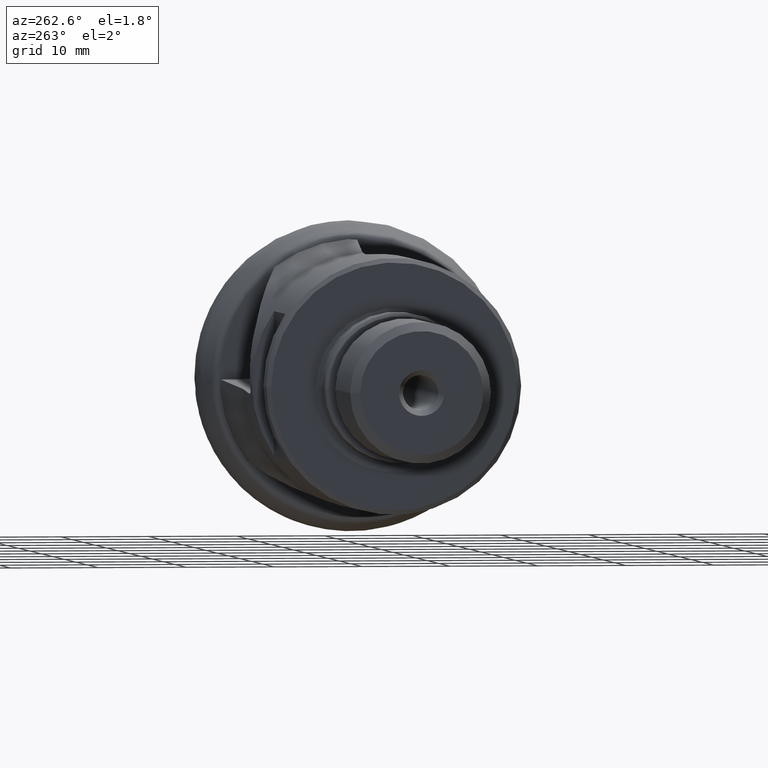
[diagram: clean part render]
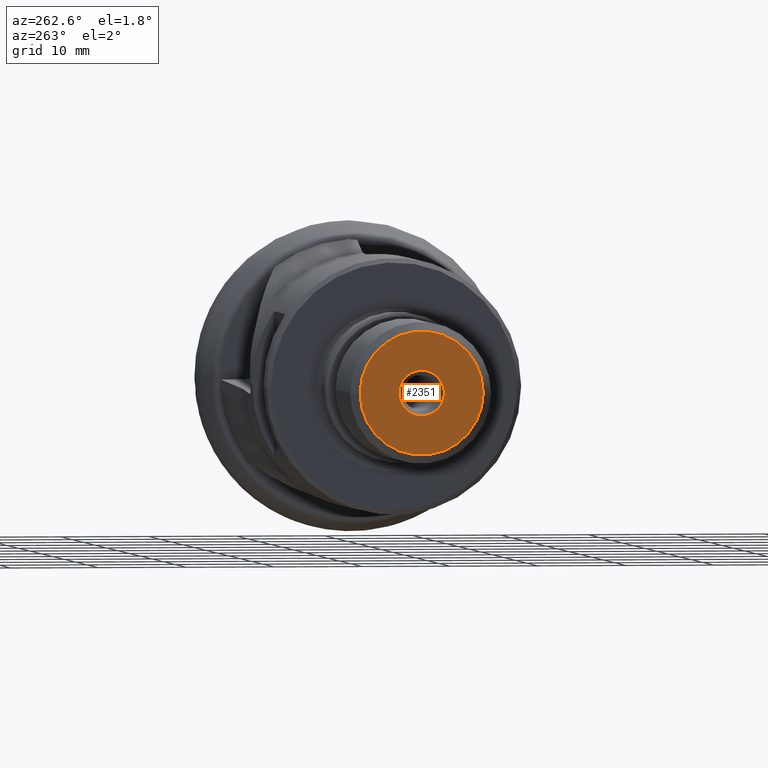
[diagram: same view with one face highlighted and labeled with its STEP entity id]
A machine part, auxiliary view. The second image highlights one B-rep face of the part: STEP entity #2351.
In plain terms, the highlighted planar face has unit normal (-1, -0, 0).
Its self-contained STEP definition (entity closure, byte-faithful):
#129 = CARTESIAN_POINT ( 'NONE',  ( -65.04999999999999700, -7.966327428453520100E-015, 0.0000000000000000000 ) ) ;
#557 = EDGE_CURVE ( 'NONE', #2455, #2455, #1476, .T. ) ;
#772 = CIRCLE ( 'NONE', #4047, 6.999999999999999100 ) ;
#780 = EDGE_LOOP ( 'NONE', ( #4846 ) ) ;
#1109 = VERTEX_POINT ( 'NONE', #2147 ) ;
#1167 = DIRECTION ( 'NONE',  ( 1.000000000000000000, 1.224646799147351500E-016, -0.0000000000000000000 ) ) ;
#1181 = DIRECTION ( 'NONE',  ( 0.0000000000000000000, 1.000000000000000000, 0.0000000000000000000 ) ) ;
#1410 = EDGE_CURVE ( 'NONE', #1109, #1109, #772, .T. ) ;
#1476 = CIRCLE ( 'NONE', #1555, 2.577350269189610600 ) ;
#1555 = AXIS2_PLACEMENT_3D ( 'NONE', #1866, #2871, #2906 ) ;
#1612 = DIRECTION ( 'NONE',  ( -1.000000000000000000, -1.224646799147351500E-016, 0.0000000000000000000 ) ) ;
#1818 = DIRECTION ( 'NONE',  ( 1.224646799147351500E-016, -1.000000000000000000, 0.0000000000000000000 ) ) ;
#1866 = CARTESIAN_POINT ( 'NONE',  ( -65.04999999999999700, 0.0000000000000000000, 0.0000000000000000000 ) ) ;
#2147 = CARTESIAN_POINT ( 'NONE',  ( -65.04999999999999700, 6.999999999999991100, 0.0000000000000000000 ) ) ;
#2157 = EDGE_LOOP ( 'NONE', ( #2609 ) ) ;
#2351 = ADVANCED_FACE ( 'NONE', ( #4400, #5470 ), #3625, .T. ) ;
#2455 = VERTEX_POINT ( 'NONE', #4966 ) ;
#2609 = ORIENTED_EDGE ( 'NONE', *, *, #557, .T. ) ;
#2871 = DIRECTION ( 'NONE',  ( 1.000000000000000000, -0.0000000000000000000, -0.0000000000000000000 ) ) ;
#2906 = DIRECTION ( 'NONE',  ( 0.0000000000000000000, 0.0000000000000000000, -1.000000000000000000 ) ) ;
#3613 = AXIS2_PLACEMENT_3D ( 'NONE', #4373, #1612, #1818 ) ;
#3625 = PLANE ( 'NONE',  #3613 ) ;
#4047 = AXIS2_PLACEMENT_3D ( 'NONE', #129, #1167, #1181 ) ;
#4373 = CARTESIAN_POINT ( 'NONE',  ( -65.04999999999999700, 6.999999999999991100, 0.0000000000000000000 ) ) ;
#4400 = FACE_BOUND ( 'NONE', #2157, .T. ) ;
#4846 = ORIENTED_EDGE ( 'NONE', *, *, #1410, .F. ) ;
#4966 = CARTESIAN_POINT ( 'NONE',  ( -65.04999999999999700, 0.0000000000000000000, -2.577350269189610600 ) ) ;
#5470 = FACE_OUTER_BOUND ( 'NONE', #780, .T. ) ;